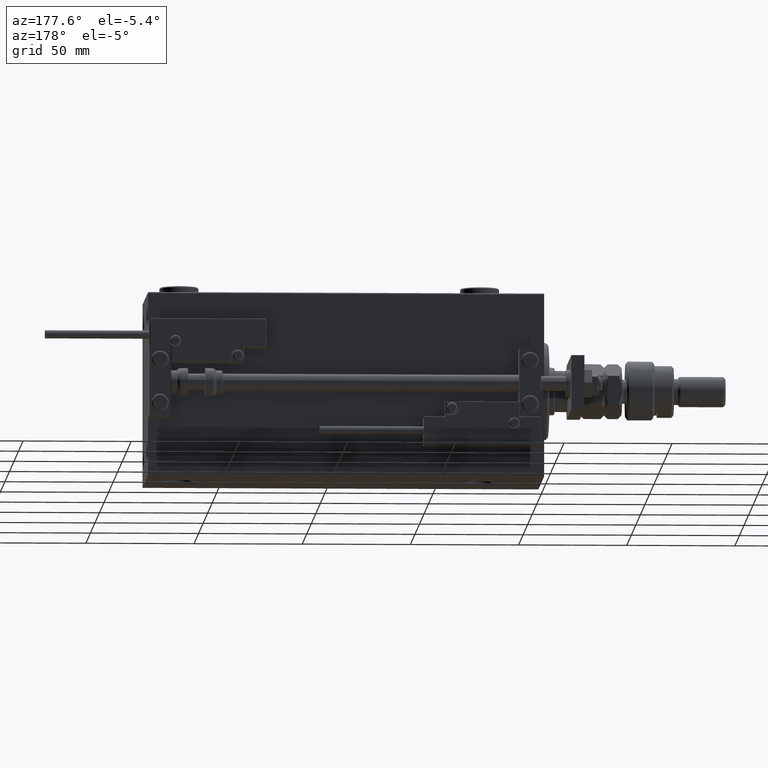
[diagram: clean part render]
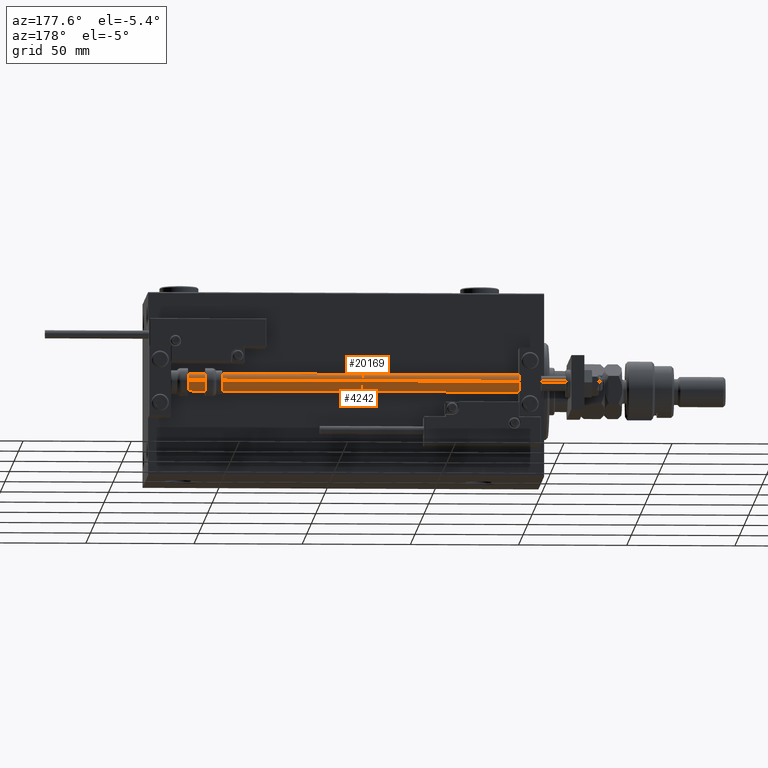
[diagram: same view with one multi-face feature highlighted, each face labeled with its STEP entity id]
A machine part, auxiliary view. The highlighted faces form ONE feature: a constant-radius fillet chain: 2 tangent blend faces with common blend radius 4 mm. The faces share edges in the B-rep.
Their STEP definitions:
[1] entity #4242 (Cylinder):
#1892 = DIRECTION ( 'NONE',  ( -1.000000000000000000, 0.000000000000000000, 0.000000000000000000 ) ) ;
#2640 = EDGE_LOOP ( 'NONE', ( #11613, #9543, #33840, #49995 ) ) ;
#4201 = VERTEX_POINT ( 'NONE', #27067 ) ;
#4242 = ADVANCED_FACE ( 'NONE', ( #27343 ), #15315, .T. ) ;
#7009 = EDGE_CURVE ( 'NONE', #8314, #53477, #44750, .T. ) ;
#8159 = CARTESIAN_POINT ( 'NONE',  ( -4.000000000000000000, 0.000000000000000000, 2.000000000000029310 ) ) ;
#8314 = VERTEX_POINT ( 'NONE', #8159 ) ;
#9103 = DIRECTION ( 'NONE',  ( 1.000000000000000000, 0.000000000000000000, 0.000000000000000000 ) ) ;
#9366 = CARTESIAN_POINT ( 'NONE',  ( -4.000000000000000000, 0.000000000000000000, 183.0000000000000000 ) ) ;
#9543 = ORIENTED_EDGE ( 'NONE', *, *, #14413, .F. ) ;
#9645 = DIRECTION ( 'NONE',  ( -0.000000000000000000, -0.000000000000000000, -1.000000000000000000 ) ) ;
#9685 = CARTESIAN_POINT ( 'NONE',  ( 4.000000000000000000, 4.898587196589412829E-16, 183.0000000000000000 ) ) ;
#9928 = LINE ( 'NONE', #9366, #37227 ) ;
#10691 = EDGE_CURVE ( 'NONE', #42654, #53477, #43024, .T. ) ;
#11613 = ORIENTED_EDGE ( 'NONE', *, *, #10691, .F. ) ;
#14413 = EDGE_CURVE ( 'NONE', #4201, #42654, #48583, .T. ) ;
#15315 = CYLINDRICAL_SURFACE ( 'NONE', #36711, 4.000000000000000000 ) ;
#17000 = AXIS2_PLACEMENT_3D ( 'NONE', #37072, #54995, #46583 ) ;
#21173 = CARTESIAN_POINT ( 'NONE',  ( 0.000000000000000000, 0.000000000000000000, 183.0000000000000000 ) ) ;
#22003 = DIRECTION ( 'NONE',  ( -0.000000000000000000, -0.000000000000000000, -1.000000000000000000 ) ) ;
#27067 = CARTESIAN_POINT ( 'NONE',  ( -4.000000000000000000, 0.000000000000000000, 183.0000000000000000 ) ) ;
#27343 = FACE_OUTER_BOUND ( 'NONE', #2640, .T. ) ;
#27854 = CARTESIAN_POINT ( 'NONE',  ( 4.000000000000000000, 4.898587196589412829E-16, 2.000000000000029310 ) ) ;
#27859 = VECTOR ( 'NONE', #22003, 1000.000000000000000 ) ;
#30678 = AXIS2_PLACEMENT_3D ( 'NONE', #21173, #39067, #9103 ) ;
#31407 = EDGE_CURVE ( 'NONE', #4201, #8314, #9928, .T. ) ;
#33840 = ORIENTED_EDGE ( 'NONE', *, *, #31407, .T. ) ;
#36307 = CARTESIAN_POINT ( 'NONE',  ( 0.000000000000000000, 0.000000000000000000, 183.0000000000000000 ) ) ;
#36711 = AXIS2_PLACEMENT_3D ( 'NONE', #36307, #49203, #1892 ) ;
#37072 = CARTESIAN_POINT ( 'NONE',  ( 0.000000000000000000, 0.000000000000000000, 2.000000000000029310 ) ) ;
#37227 = VECTOR ( 'NONE', #9645, 1000.000000000000000 ) ;
#39067 = DIRECTION ( 'NONE',  ( 0.000000000000000000, 0.000000000000000000, 1.000000000000000000 ) ) ;
#42654 = VERTEX_POINT ( 'NONE', #50565 ) ;
#43024 = LINE ( 'NONE', #9685, #27859 ) ;
#44750 = CIRCLE ( 'NONE', #17000, 4.000000000000000000 ) ;
#46583 = DIRECTION ( 'NONE',  ( 1.000000000000000000, 0.000000000000000000, 0.000000000000000000 ) ) ;
#48583 = CIRCLE ( 'NONE', #30678, 4.000000000000000000 ) ;
#49203 = DIRECTION ( 'NONE',  ( -0.000000000000000000, -0.000000000000000000, -1.000000000000000000 ) ) ;
#49995 = ORIENTED_EDGE ( 'NONE', *, *, #7009, .T. ) ;
#50565 = CARTESIAN_POINT ( 'NONE',  ( 4.000000000000000000, 4.898587196589412829E-16, 183.0000000000000000 ) ) ;
#53477 = VERTEX_POINT ( 'NONE', #27854 ) ;
#54995 = DIRECTION ( 'NONE',  ( -0.000000000000000000, -0.000000000000000000, 1.000000000000000000 ) ) ;
[2] entity #20169 (Cylinder):
#4201 = VERTEX_POINT ( 'NONE', #27067 ) ;
#7715 = FACE_OUTER_BOUND ( 'NONE', #51106, .T. ) ;
#8159 = CARTESIAN_POINT ( 'NONE',  ( -4.000000000000000000, 0.000000000000000000, 2.000000000000029310 ) ) ;
#8256 = CYLINDRICAL_SURFACE ( 'NONE', #29752, 4.000000000000000000 ) ;
#8314 = VERTEX_POINT ( 'NONE', #8159 ) ;
#9366 = CARTESIAN_POINT ( 'NONE',  ( -4.000000000000000000, 0.000000000000000000, 183.0000000000000000 ) ) ;
#9645 = DIRECTION ( 'NONE',  ( -0.000000000000000000, -0.000000000000000000, -1.000000000000000000 ) ) ;
#9685 = CARTESIAN_POINT ( 'NONE',  ( 4.000000000000000000, 4.898587196589412829E-16, 183.0000000000000000 ) ) ;
#9928 = LINE ( 'NONE', #9366, #37227 ) ;
#10691 = EDGE_CURVE ( 'NONE', #42654, #53477, #43024, .T. ) ;
#11402 = ORIENTED_EDGE ( 'NONE', *, *, #31407, .F. ) ;
#15744 = AXIS2_PLACEMENT_3D ( 'NONE', #33942, #51061, #29738 ) ;
#16063 = DIRECTION ( 'NONE',  ( 1.000000000000000000, 0.000000000000000000, 0.000000000000000000 ) ) ;
#17497 = ORIENTED_EDGE ( 'NONE', *, *, #37748, .F. ) ;
#20169 = ADVANCED_FACE ( 'NONE', ( #7715 ), #8256, .T. ) ;
#20323 = CARTESIAN_POINT ( 'NONE',  ( 0.000000000000000000, 0.000000000000000000, 183.0000000000000000 ) ) ;
#22003 = DIRECTION ( 'NONE',  ( -0.000000000000000000, -0.000000000000000000, -1.000000000000000000 ) ) ;
#25851 = AXIS2_PLACEMENT_3D ( 'NONE', #45473, #40994, #16063 ) ;
#26897 = EDGE_CURVE ( 'NONE', #53477, #8314, #38936, .T. ) ;
#27067 = CARTESIAN_POINT ( 'NONE',  ( -4.000000000000000000, 0.000000000000000000, 183.0000000000000000 ) ) ;
#27854 = CARTESIAN_POINT ( 'NONE',  ( 4.000000000000000000, 4.898587196589412829E-16, 2.000000000000029310 ) ) ;
#27859 = VECTOR ( 'NONE', #22003, 1000.000000000000000 ) ;
#29738 = DIRECTION ( 'NONE',  ( 1.000000000000000000, 0.000000000000000000, 0.000000000000000000 ) ) ;
#29752 = AXIS2_PLACEMENT_3D ( 'NONE', #20323, #45520, #41590 ) ;
#31407 = EDGE_CURVE ( 'NONE', #4201, #8314, #9928, .T. ) ;
#33942 = CARTESIAN_POINT ( 'NONE',  ( 0.000000000000000000, 0.000000000000000000, 2.000000000000029310 ) ) ;
#35552 = ORIENTED_EDGE ( 'NONE', *, *, #10691, .T. ) ;
#37227 = VECTOR ( 'NONE', #9645, 1000.000000000000000 ) ;
#37505 = CIRCLE ( 'NONE', #25851, 4.000000000000000000 ) ;
#37748 = EDGE_CURVE ( 'NONE', #42654, #4201, #37505, .T. ) ;
#38936 = CIRCLE ( 'NONE', #15744, 4.000000000000000000 ) ;
#40994 = DIRECTION ( 'NONE',  ( 0.000000000000000000, 0.000000000000000000, 1.000000000000000000 ) ) ;
#41541 = ORIENTED_EDGE ( 'NONE', *, *, #26897, .T. ) ;
#41590 = DIRECTION ( 'NONE',  ( -1.000000000000000000, 0.000000000000000000, 0.000000000000000000 ) ) ;
#42654 = VERTEX_POINT ( 'NONE', #50565 ) ;
#43024 = LINE ( 'NONE', #9685, #27859 ) ;
#45473 = CARTESIAN_POINT ( 'NONE',  ( 0.000000000000000000, 0.000000000000000000, 183.0000000000000000 ) ) ;
#45520 = DIRECTION ( 'NONE',  ( -0.000000000000000000, -0.000000000000000000, -1.000000000000000000 ) ) ;
#50565 = CARTESIAN_POINT ( 'NONE',  ( 4.000000000000000000, 4.898587196589412829E-16, 183.0000000000000000 ) ) ;
#51061 = DIRECTION ( 'NONE',  ( -0.000000000000000000, -0.000000000000000000, 1.000000000000000000 ) ) ;
#51106 = EDGE_LOOP ( 'NONE', ( #17497, #35552, #41541, #11402 ) ) ;
#53477 = VERTEX_POINT ( 'NONE', #27854 ) ;